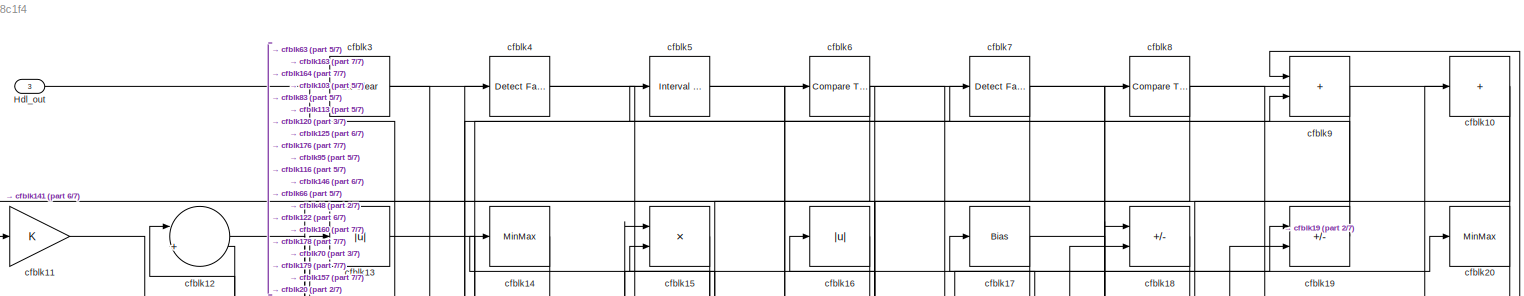
[diagram: root canvas - part 1/7, full width, top band]
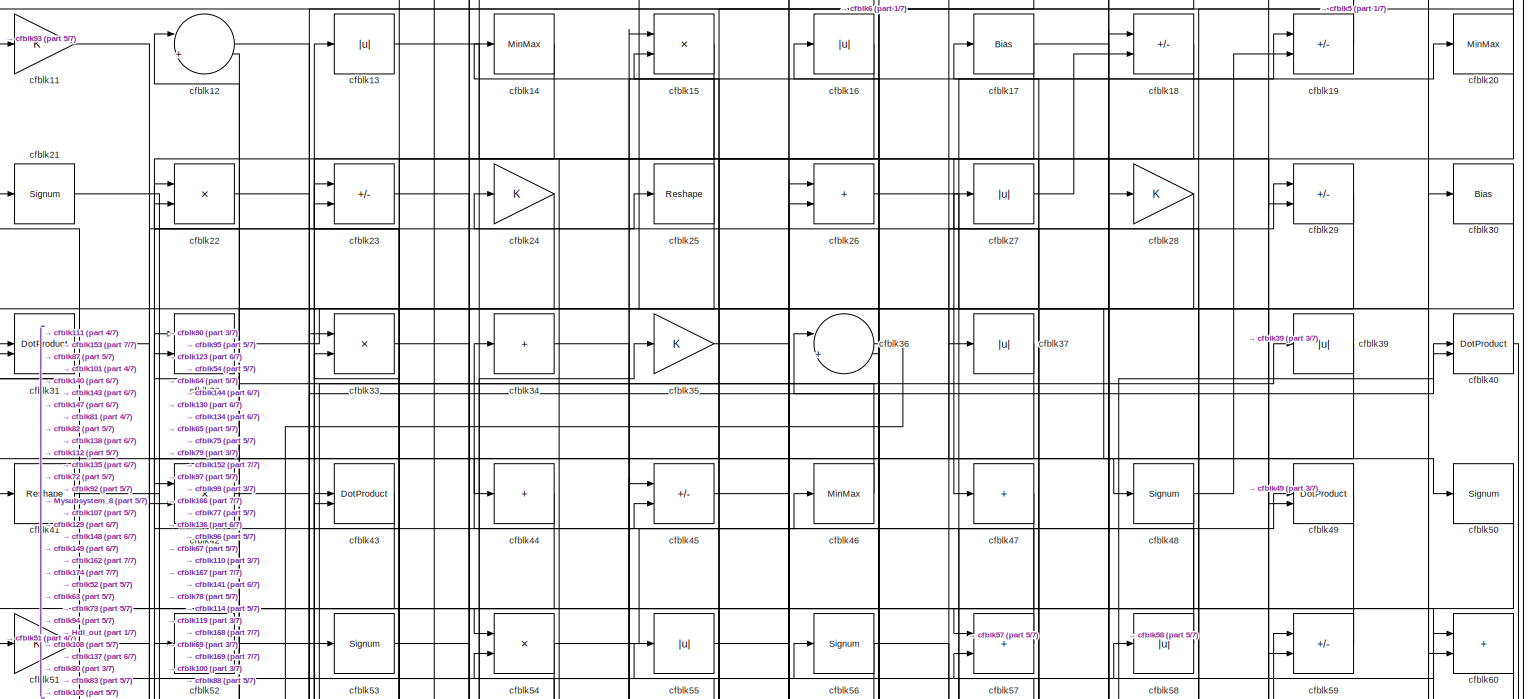
[diagram: root canvas - part 2/7, full width, top band]
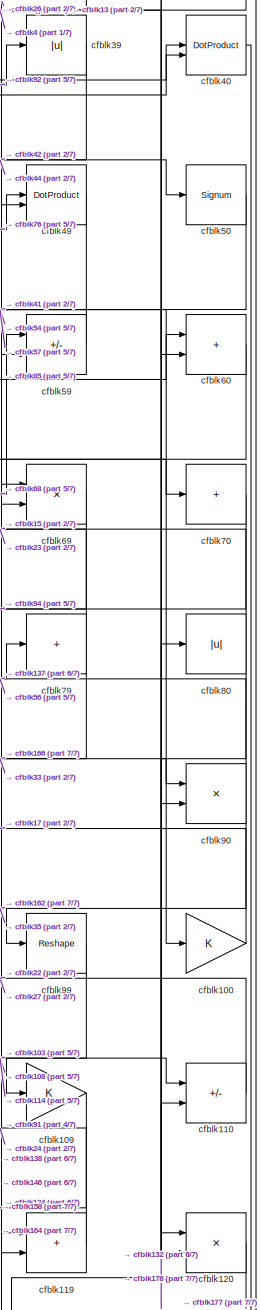
[diagram: root canvas - part 3/7, middle right region]
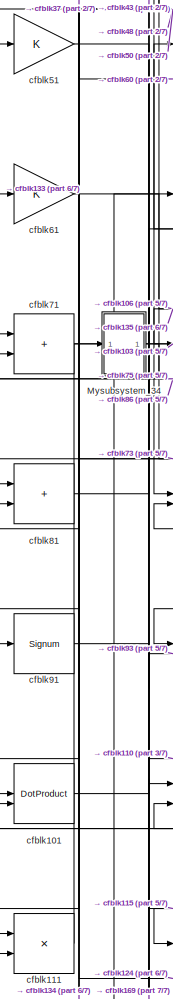
[diagram: root canvas - part 4/7, middle left region]
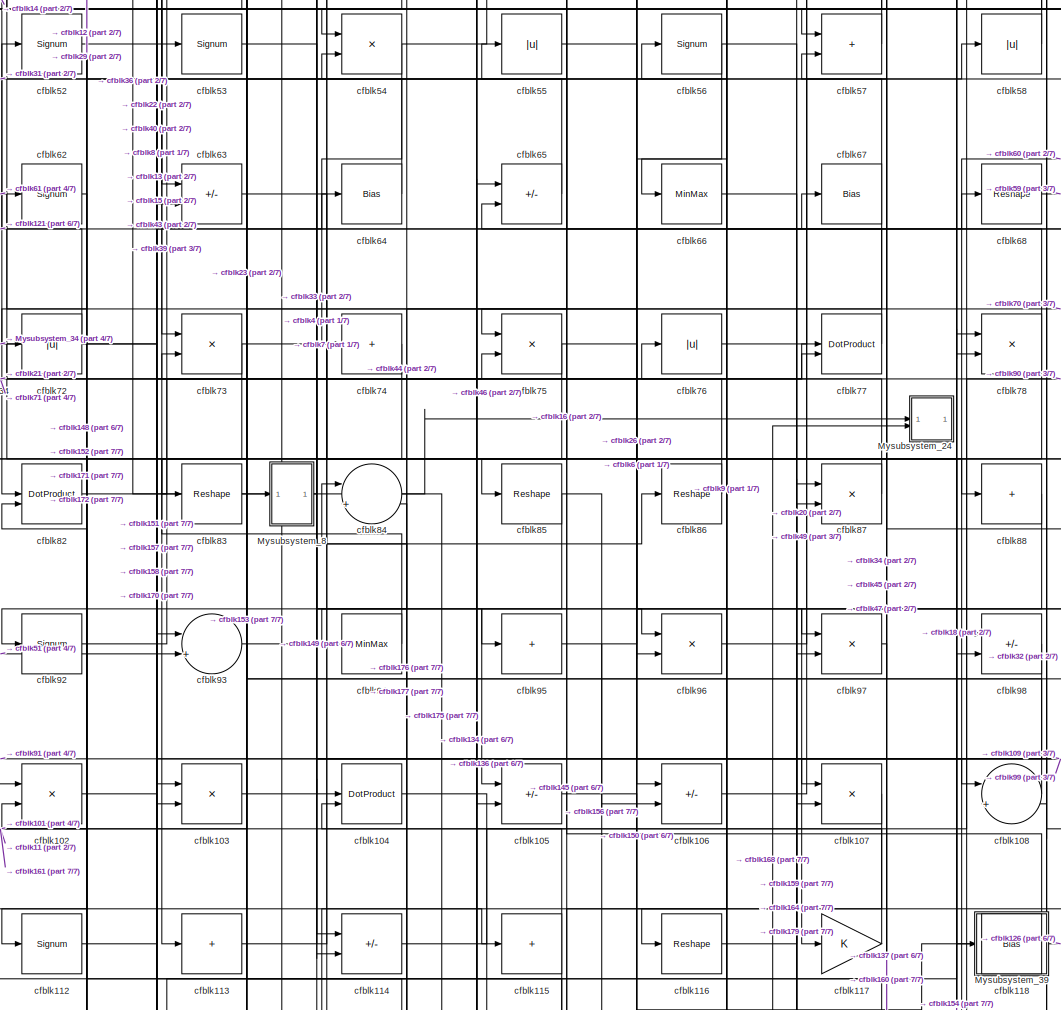
[diagram: root canvas - part 5/7, central region]
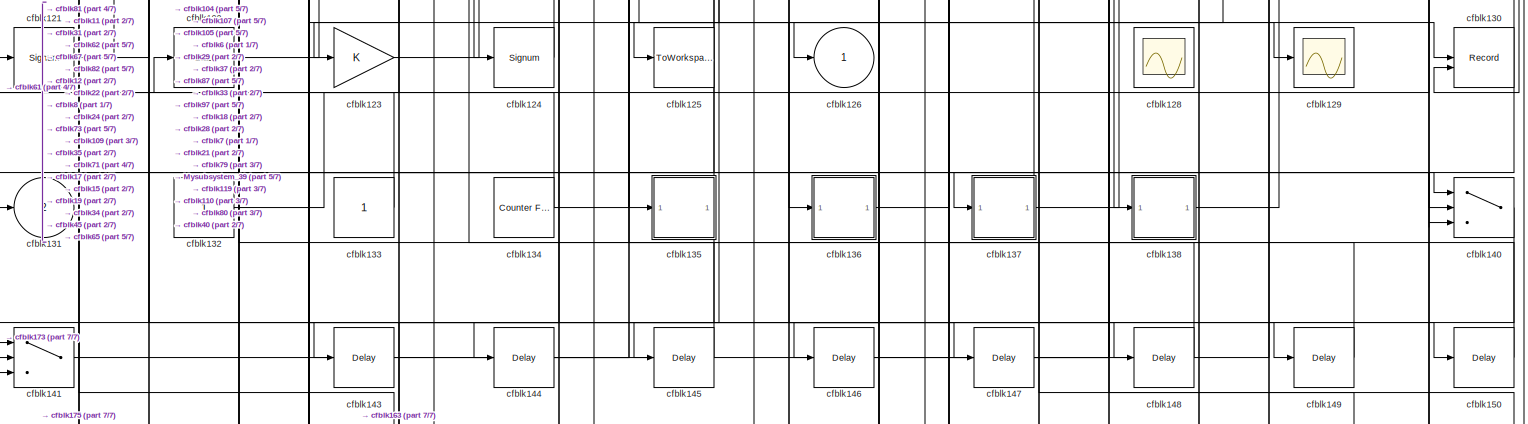
[diagram: root canvas - part 6/7, full width, bottom band]
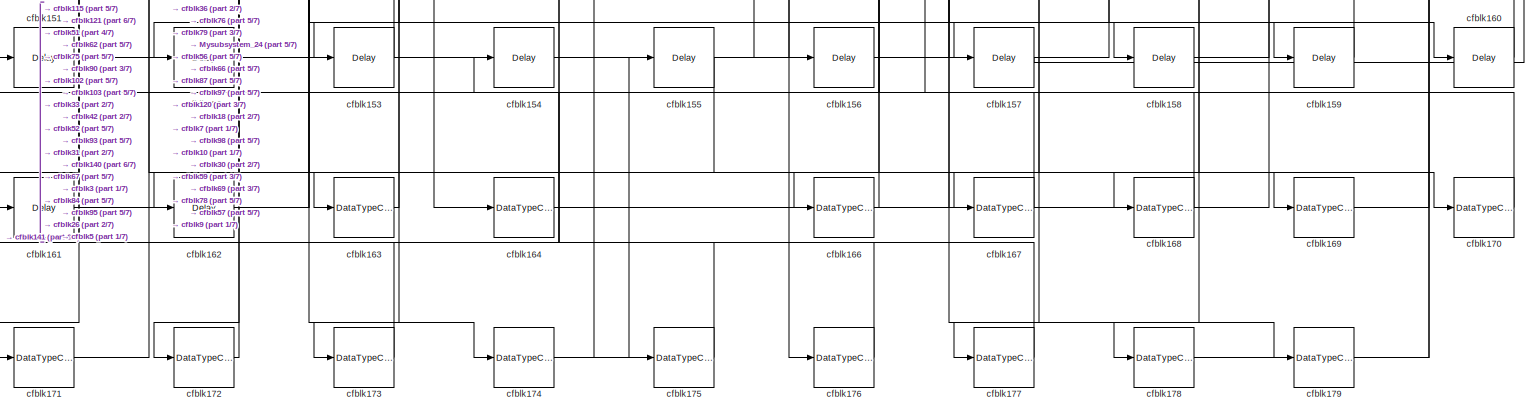
[diagram: root canvas - part 7/7, full width, bottom band]
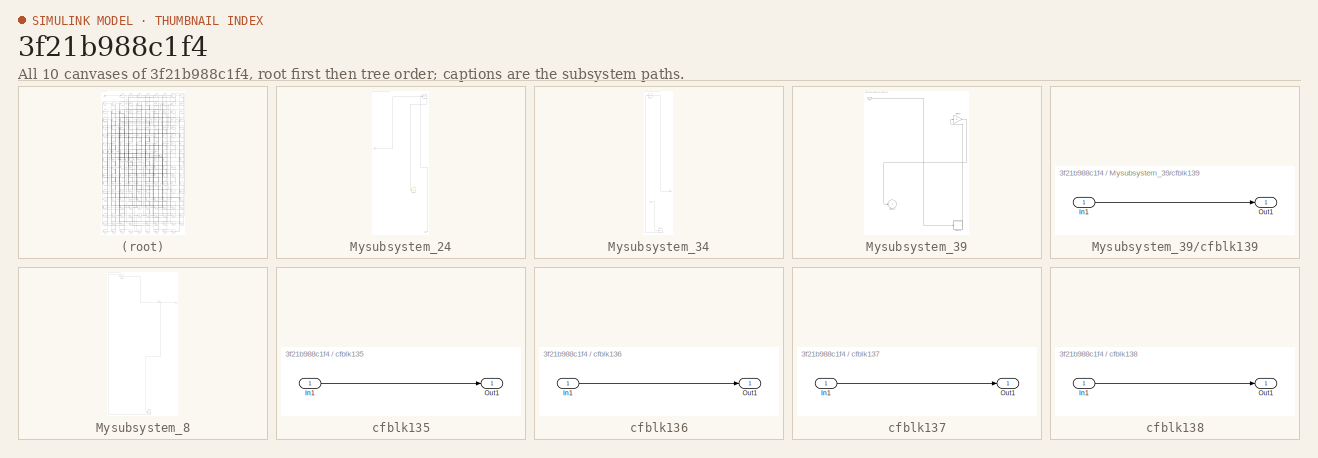
[diagram: thumbnail index - all 10 canvases of the model, root first then tree order]
MODEL slx_3f21b988c1f4
KIND model
CONFIG AbsTol = auto
CONFIG EnableMultiTasking = off
CONFIG FixedStep = auto
CONFIG MaxStep = auto
CONFIG MinStep = auto
CONFIG RelTol = 1e-3
CONFIG SampleTimeConstraint = Unconstrained
CONFIG SolverName = VariableStepAuto
CONFIG StartTime = 0.0
CONFIG StopTime = 10.0
BLOCK [Outport] Hdl_out
  OutDataTypeStr = uint8
  Port = 3
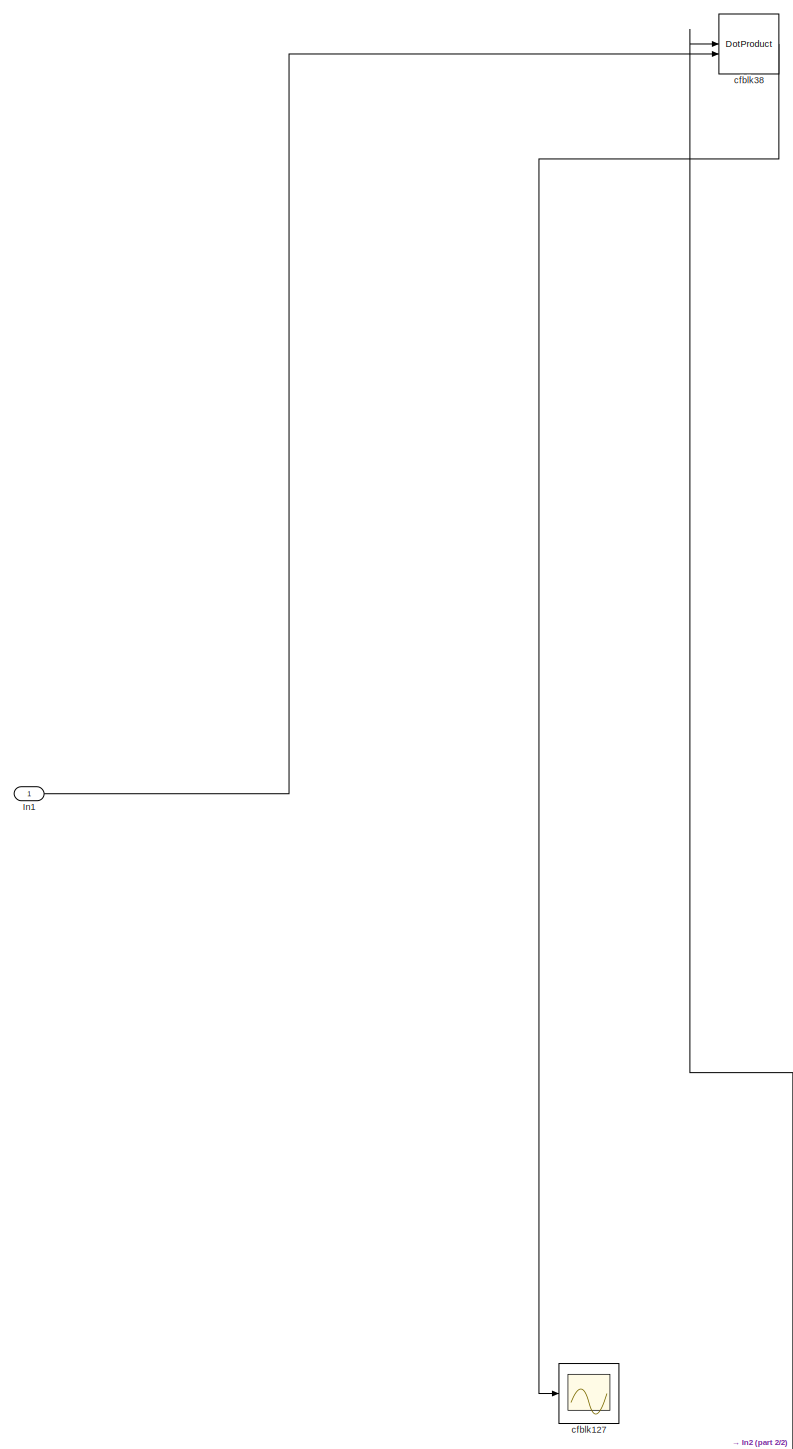
[diagram: Mysubsystem_24 - part 1/2, full width, middle band]
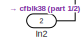
[diagram: Mysubsystem_24 - part 2/2, bottom right region]
BLOCK [SubSystem] Mysubsystem_24
  RTWFcnName = Mysubsystem_24
  RTWFcnNameOpts = User specified
  RTWFileNameOpts = Use function name
  RTWSystemCode = Reusable function
  TreatAsAtomicUnit = on
BLOCK [Inport] Mysubsystem_24/In1
BLOCK [Inport] Mysubsystem_24/In2
  Port = 2
BLOCK [Scope] Mysubsystem_24/cfblk127
  Floating = off
  NumInputPorts = 1
  ScopeSpecificationString = Simulink.scopes.TimeScopeBlockCfg('CurrentConfiguration', extmgr.ConfigurationSet(extmgr.Configuration('Core','General UI',true),extmgr.Configuration('Core','Source UI',true),extmgr.Configuration('Sources','WiredSimulink',true,'DataLoggingVariableName','ScopeData2','DataLoggingSaveFormat','Array','DataLoggingLimitDataPoints',true,'DataLoggingDecimation','1'),extmgr.Configuration('Visuals','Time Do...<+868ch>
BLOCK [DotProduct] Mysubsystem_24/cfblk38
  OutDataTypeStr = Inherit: Inherit via internal rule
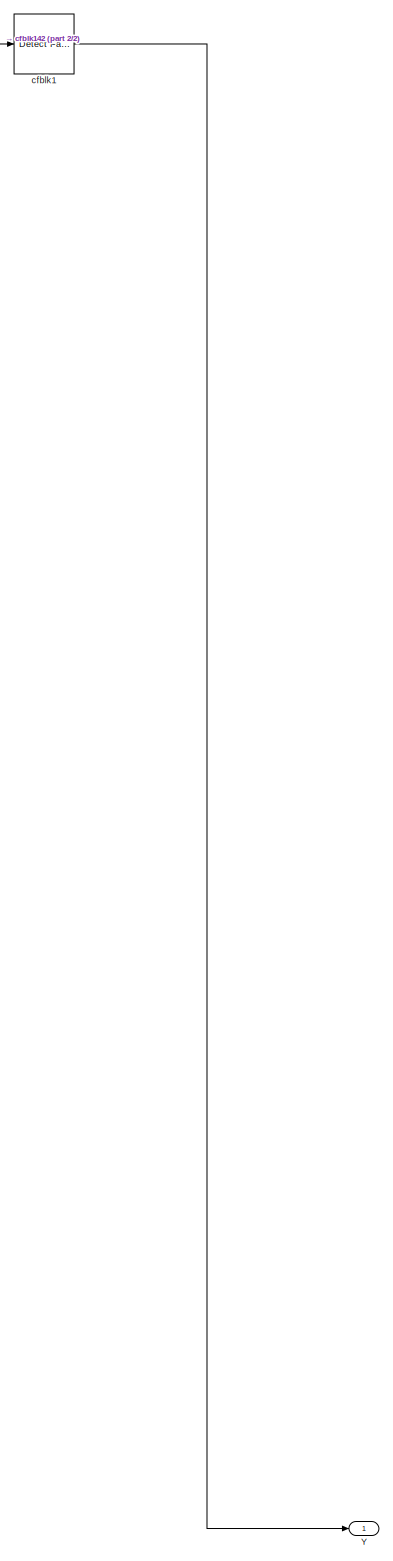
[diagram: Mysubsystem_34 - part 1/2, full width, middle band]
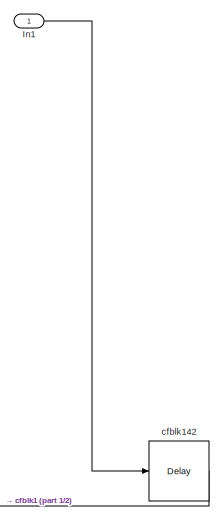
[diagram: Mysubsystem_34 - part 2/2, bottom center region]
BLOCK [SubSystem] Mysubsystem_34
  RTWFcnName = Mysubsystem_34
  RTWFcnNameOpts = User specified
  RTWFileNameOpts = Use function name
  RTWSystemCode = Reusable function
  TreatAsAtomicUnit = on
BLOCK [Inport] Mysubsystem_34/In1
BLOCK [Outport] Mysubsystem_34/Y
BLOCK [Reference] Mysubsystem_34/cfblk1  REF=hdlsllib/Logic and Bit
Operations/Detect Fall
Nonpositive
  SourceBlock = hdlsllib/Logic and Bit\nOperations/Detect Fall\nNonpositive
  SourceType = Detect Fall Nonpositive
BLOCK [Delay] Mysubsystem_34/cfblk142
  InputPortMap = u0
  SampleTime = 1
BLOCK [SubSystem] Mysubsystem_39
  RTWFcnName = Mysubsystem_39
  RTWFcnNameOpts = User specified
  RTWFileNameOpts = Use function name
  RTWSystemCode = Reusable function
  TreatAsAtomicUnit = on
BLOCK [Inport] Mysubsystem_39/In1
BLOCK [Outport] Mysubsystem_39/cfblk126
  VectorParamsAs1DForOutWhenUnconnected = off
BLOCK [SubSystem] Mysubsystem_39/cfblk139
  LibrarySourceBlock = hdlsllib/Ports &\nSubsystems/Subsystem
BLOCK [Inport] Mysubsystem_39/cfblk139/In1
BLOCK [Outport] Mysubsystem_39/cfblk139/Out1
BLOCK [Gain] Mysubsystem_39/cfblk89
BLOCK [SubSystem] Mysubsystem_8
  RTWFcnName = Mysubsystem_8
  RTWFcnNameOpts = User specified
  RTWFileNameOpts = Use function name
  RTWSystemCode = Reusable function
  TreatAsAtomicUnit = on
BLOCK [Inport] Mysubsystem_8/In1
BLOCK [DataTypeConversion] Mysubsystem_8/cfblk165
  OutDataTypeStr = uint8
  RndMeth = Floor
  SaturateOnIntegerOverflow = off
BLOCK [Reference] Mysubsystem_8/cfblk2  REF=simulink/Logic and Bit
Operations/Bit Set
  LibrarySourceBlock = hdlsllib/Logic and Bit\nOperations/Bit Set
  SourceBlock = simulink/Logic and Bit\nOperations/Bit Set
  SourceType = Bit Set
BLOCK [Outport] Mysubsystem_8/y
BLOCK [Sum] cfblk10
  IconShape = rectangular
  Inputs = +
  OutDataTypeStr = uint8
BLOCK [Gain] cfblk100
  OutDataTypeStr = uint8
BLOCK [DotProduct] cfblk101
  OutDataTypeStr = uint8
BLOCK [Product] cfblk102
  Inputs = */
  OutDataTypeStr = uint8
  RndMeth = Zero
  SaturateOnIntegerOverflow = on
BLOCK [Product] cfblk103
  Inputs = */
  OutDataTypeStr = uint8
  RndMeth = Zero
  SaturateOnIntegerOverflow = on
BLOCK [DotProduct] cfblk104
  OutDataTypeStr = uint8
BLOCK [Sum] cfblk105
  IconShape = rectangular
  Inputs = +-
  OutDataTypeStr = uint8
BLOCK [Sum] cfblk106
  IconShape = rectangular
  Inputs = +-
  OutDataTypeStr = uint8
BLOCK [Product] cfblk107
  Inputs = */
  OutDataTypeStr = uint8
  RndMeth = Zero
  SaturateOnIntegerOverflow = on
BLOCK [Sum] cfblk108
  Inputs = |++
  OutDataTypeStr = uint8
BLOCK [Gain] cfblk109
  OutDataTypeStr = uint8
BLOCK [Gain] cfblk11
  OutDataTypeStr = uint8
BLOCK [Sum] cfblk110
  IconShape = rectangular
  Inputs = +-
  OutDataTypeStr = uint8
BLOCK [Product] cfblk111
  Inputs = */
  OutDataTypeStr = uint8
  RndMeth = Zero
  SaturateOnIntegerOverflow = on
BLOCK [Signum] cfblk112
BLOCK [Sum] cfblk113
  IconShape = rectangular
  Inputs = +
  OutDataTypeStr = uint8
BLOCK [Sum] cfblk114
  IconShape = rectangular
  Inputs = +-
  OutDataTypeStr = uint8
BLOCK [Sum] cfblk115
  IconShape = rectangular
  Inputs = +
  OutDataTypeStr = uint8
BLOCK [Reshape] cfblk116
BLOCK [Gain] cfblk117
  OutDataTypeStr = uint8
BLOCK [Bias] cfblk118
  Bias = 0.0
  SaturateOnIntegerOverflow = off
BLOCK [Sum] cfblk119
  IconShape = rectangular
  OutDataTypeStr = uint8
BLOCK [Sum] cfblk12
  Inputs = |++
  OutDataTypeStr = uint8
BLOCK [Product] cfblk120
  Inputs = */
  OutDataTypeStr = uint8
  RndMeth = Zero
  SaturateOnIntegerOverflow = on
BLOCK [Signum] cfblk121
BLOCK [Bias] cfblk122
  Bias = 0.0
  SaturateOnIntegerOverflow = off
BLOCK [Gain] cfblk123
  OutDataTypeStr = uint8
BLOCK [Signum] cfblk124
BLOCK [ToWorkspace] cfblk125
  MaxDataPoints = inf
  SampleTime = -1
  SaveFormat = Timeseries
  VariableName = simout
BLOCK [Outport] cfblk126
  OutDataTypeStr = uint8
  VectorParamsAs1DForOutWhenUnconnected = off
BLOCK [Scope] cfblk128
  Floating = on
  NumInputPorts = 1
  ScopeSpecificationString = Simulink.scopes.TimeScopeBlockCfg('CurrentConfiguration', extmgr.ConfigurationSet(extmgr.Configuration('Core','General UI',true,'FigureColor',[0.156862745098039 0.156862745098039 0.156862745098039]),extmgr.Configuration('Core','Source UI',true),extmgr.Configuration('Sources','WiredSimulink',true,'DataLoggingVariableName','ScopeData1','DataLoggingSaveFormat','StructureWithTime','DataLoggingLimitDat...<+2713ch>
BLOCK [Scope] cfblk129
  Floating = off
  NumInputPorts = 1
  ScopeSpecificationString = Simulink.scopes.TimeScopeBlockCfg('CurrentConfiguration', extmgr.ConfigurationSet(extmgr.Configuration('Core','General UI',true),extmgr.Configuration('Core','Source UI',true),extmgr.Configuration('Sources','WiredSimulink',true,'DataLoggingVariableName','ScopeData2','DataLoggingSaveFormat','Array','DataLoggingLimitDataPoints',true,'DataLoggingDecimation','1'),extmgr.Configuration('Visuals','Time Do...<+868ch>
BLOCK [Abs] cfblk13
  OutDataTypeStr = uint8
  SaturateOnIntegerOverflow = off
BLOCK [Record] cfblk130
  CompatibilityTag = XY
  FileSettingsInternal = {"entries":[{"content":{"excelSettings":{"content":{},"type":"Streamout.ExcelSettings"}},"type":"Streamout.FileSettingStorage","uuid":""}],"packageUris":["http:\/\/schema.mathworks.com\/mf0\/streamout_blocks\/R2020a"],"version":"1.0"}
  Layout = [1 1]
  SignalsInternal = {"entries":[{"content":{"signals":[{"content":{"blockPath":[],"dimensions":[1],"domain":"","lineColor":"#a2142f","plots":[1],"port":1,"signalID":52225,"signalName":"cfblk34"},"type":"RecordBlkView.Signal","uuid":""},{"content":{"blockPath":[],"dimensions":[1],"domain":"","lineColor":"#139fff","plots":[1],"port":2,"signalID":52228,"signalName":"cfblk40"},"type":"RecordBlkView.Signal","uuid":""}]},"...<+142ch>
  VisualizationBindings = {"xyplotplugin":{"info":[{"series":[{"bindingParametersList":[{"parameter":"X-Axis","signalID":52225,"signalName":"cfblk34"},{"parameter":"Y-Axis","signalID":52228,"signalName":"cfblk40"}],"seriesID":51963}],"subplotID":1}]}}
  st = -1
BLOCK [Outport] cfblk131
  OutDataTypeStr = uint8
  Port = 2
  VectorParamsAs1DForOutWhenUnconnected = off
BLOCK [Constant] cfblk132
  OutDataTypeStr = uint8
  SampleTime = -1
BLOCK [Constant] cfblk133
  OutDataTypeStr = uint8
  SampleTime = -1
BLOCK [Reference] cfblk134  REF=hdlsllib/Sources/Counter
Free-Running
  SourceBlock = hdlsllib/Sources/Counter\nFree-Running
  SourceType = Counter Free-Running
BLOCK [SubSystem] cfblk135
  LibrarySourceBlock = hdlsllib/Ports &\nSubsystems/Subsystem
BLOCK [Inport] cfblk135/In1
BLOCK [Outport] cfblk135/Out1
BLOCK [SubSystem] cfblk136
  LibrarySourceBlock = hdlsllib/Ports &\nSubsystems/Subsystem
BLOCK [Inport] cfblk136/In1
BLOCK [Outport] cfblk136/Out1
BLOCK [SubSystem] cfblk137
  LibrarySourceBlock = hdlsllib/Ports &\nSubsystems/Subsystem
BLOCK [Inport] cfblk137/In1
BLOCK [Outport] cfblk137/Out1
BLOCK [SubSystem] cfblk138
  LibrarySourceBlock = hdlsllib/Ports &\nSubsystems/Subsystem
BLOCK [Inport] cfblk138/In1
BLOCK [Outport] cfblk138/Out1
BLOCK [MinMax] cfblk14
  OutDataTypeStr = uint8
BLOCK [Switch] cfblk140
  InputSameDT = off
  OutDataTypeStr = uint8
  SaturateOnIntegerOverflow = off
BLOCK [Switch] cfblk141
  InputSameDT = off
  OutDataTypeStr = uint8
  SaturateOnIntegerOverflow = off
BLOCK [Delay] cfblk143
  InputPortMap = u0
  SampleTime = 1
BLOCK [Delay] cfblk144
  InputPortMap = u0
  SampleTime = 1
BLOCK [Delay] cfblk145
  InputPortMap = u0
  SampleTime = 1
BLOCK [Delay] cfblk146
  InputPortMap = u0
  SampleTime = 1
BLOCK [Delay] cfblk147
  InputPortMap = u0
  SampleTime = 1
BLOCK [Delay] cfblk148
  InputPortMap = u0
  SampleTime = 1
BLOCK [Delay] cfblk149
  InputPortMap = u0
  SampleTime = 1
BLOCK [Product] cfblk15
  Inputs = */
  OutDataTypeStr = uint8
  RndMeth = Zero
  SaturateOnIntegerOverflow = on
BLOCK [Delay] cfblk150
  InputPortMap = u0
  SampleTime = 1
BLOCK [Delay] cfblk151
  InputPortMap = u0
  SampleTime = 1
BLOCK [Delay] cfblk152
  InputPortMap = u0
  SampleTime = 1
BLOCK [Delay] cfblk153
  InputPortMap = u0
  SampleTime = 1
BLOCK [Delay] cfblk154
  InputPortMap = u0
  SampleTime = 1
BLOCK [Delay] cfblk155
  InputPortMap = u0
  SampleTime = 1
BLOCK [Delay] cfblk156
  InputPortMap = u0
  SampleTime = 1
BLOCK [Delay] cfblk157
  InputPortMap = u0
  SampleTime = 1
BLOCK [Delay] cfblk158
  InputPortMap = u0
  SampleTime = 1
BLOCK [Delay] cfblk159
  InputPortMap = u0
  SampleTime = 1
BLOCK [Abs] cfblk16
  OutDataTypeStr = uint8
  SaturateOnIntegerOverflow = off
BLOCK [Delay] cfblk160
  InputPortMap = u0
  SampleTime = 1
BLOCK [Delay] cfblk161
  InputPortMap = u0
  SampleTime = 1
BLOCK [Delay] cfblk162
  InputPortMap = u0
  SampleTime = 1
BLOCK [DataTypeConversion] cfblk163
  OutDataTypeStr = uint8
  RndMeth = Floor
  SaturateOnIntegerOverflow = off
BLOCK [DataTypeConversion] cfblk164
  OutDataTypeStr = uint8
  RndMeth = Floor
  SaturateOnIntegerOverflow = off
BLOCK [DataTypeConversion] cfblk166
  OutDataTypeStr = uint8
  RndMeth = Floor
  SaturateOnIntegerOverflow = off
BLOCK [DataTypeConversion] cfblk167
  OutDataTypeStr = uint8
  RndMeth = Floor
  SaturateOnIntegerOverflow = off
BLOCK [DataTypeConversion] cfblk168
  OutDataTypeStr = uint8
  RndMeth = Floor
  SaturateOnIntegerOverflow = off
BLOCK [DataTypeConversion] cfblk169
  OutDataTypeStr = uint8
  RndMeth = Floor
  SaturateOnIntegerOverflow = off
BLOCK [Bias] cfblk17
  Bias = 0.0
  SaturateOnIntegerOverflow = off
BLOCK [DataTypeConversion] cfblk170
  OutDataTypeStr = uint8
  RndMeth = Floor
  SaturateOnIntegerOverflow = off
BLOCK [DataTypeConversion] cfblk171
  OutDataTypeStr = uint8
  RndMeth = Floor
  SaturateOnIntegerOverflow = off
BLOCK [DataTypeConversion] cfblk172
  OutDataTypeStr = uint8
  RndMeth = Floor
  SaturateOnIntegerOverflow = off
BLOCK [DataTypeConversion] cfblk173
  OutDataTypeStr = uint8
  RndMeth = Floor
  SaturateOnIntegerOverflow = off
BLOCK [DataTypeConversion] cfblk174
  OutDataTypeStr = uint8
  RndMeth = Floor
  SaturateOnIntegerOverflow = off
BLOCK [DataTypeConversion] cfblk175
  OutDataTypeStr = uint8
  RndMeth = Floor
  SaturateOnIntegerOverflow = off
BLOCK [DataTypeConversion] cfblk176
  OutDataTypeStr = uint8
  RndMeth = Floor
  SaturateOnIntegerOverflow = off
BLOCK [DataTypeConversion] cfblk177
  OutDataTypeStr = uint8
  RndMeth = Floor
  SaturateOnIntegerOverflow = off
BLOCK [DataTypeConversion] cfblk178
  OutDataTypeStr = uint8
  RndMeth = Floor
  SaturateOnIntegerOverflow = off
BLOCK [DataTypeConversion] cfblk179
  OutDataTypeStr = uint8
  RndMeth = Floor
  SaturateOnIntegerOverflow = off
BLOCK [Sum] cfblk18
  IconShape = rectangular
  Inputs = +-
  OutDataTypeStr = uint8
BLOCK [Sum] cfblk19
  IconShape = rectangular
  Inputs = +-
  OutDataTypeStr = uint8
BLOCK [MinMax] cfblk20
  OutDataTypeStr = uint8
BLOCK [Signum] cfblk21
BLOCK [Product] cfblk22
  Inputs = */
  OutDataTypeStr = uint8
  RndMeth = Zero
  SaturateOnIntegerOverflow = on
BLOCK [Sum] cfblk23
  IconShape = rectangular
  Inputs = +-
  OutDataTypeStr = uint8
BLOCK [Gain] cfblk24
  OutDataTypeStr = uint8
BLOCK [Reshape] cfblk25
BLOCK [Sum] cfblk26
  IconShape = rectangular
  OutDataTypeStr = uint8
BLOCK [Abs] cfblk27
  OutDataTypeStr = uint8
  SaturateOnIntegerOverflow = off
BLOCK [Gain] cfblk28
  OutDataTypeStr = uint8
BLOCK [Sum] cfblk29
  IconShape = rectangular
  Inputs = +-
  OutDataTypeStr = uint8
BLOCK [Reference] cfblk3  REF=simulink/Logic and Bit
Operations/Bit Clear
  LibrarySourceBlock = hdlsllib/Logic and Bit\nOperations/Bit Clear
  SourceBlock = simulink/Logic and Bit\nOperations/Bit Clear
  SourceType = Bit Clear
BLOCK [Bias] cfblk30
  Bias = 0.0
  SaturateOnIntegerOverflow = off
BLOCK [DotProduct] cfblk31
  OutDataTypeStr = uint8
BLOCK [Sum] cfblk32
  IconShape = rectangular
  OutDataTypeStr = uint8
BLOCK [Product] cfblk33
  Inputs = */
  OutDataTypeStr = uint8
  RndMeth = Zero
  SaturateOnIntegerOverflow = on
BLOCK [Sum] cfblk34
  IconShape = rectangular
  Inputs = +
  OutDataTypeStr = uint8
BLOCK [Gain] cfblk35
  OutDataTypeStr = uint8
BLOCK [Sum] cfblk36
  Inputs = |++
  OutDataTypeStr = uint8
BLOCK [Abs] cfblk37
  OutDataTypeStr = uint8
  SaturateOnIntegerOverflow = off
BLOCK [Abs] cfblk39
  OutDataTypeStr = uint8
  SaturateOnIntegerOverflow = off
BLOCK [Reference] cfblk4  REF=hdlsllib/Logic and Bit
Operations/Detect Fall
Negative
  SourceBlock = hdlsllib/Logic and Bit\nOperations/Detect Fall\nNegative
  SourceType = Detect Fall Negative
BLOCK [DotProduct] cfblk40
  OutDataTypeStr = uint8
BLOCK [Reshape] cfblk41
BLOCK [Product] cfblk42
  Inputs = */
  OutDataTypeStr = uint8
  RndMeth = Zero
  SaturateOnIntegerOverflow = on
BLOCK [DotProduct] cfblk43
  OutDataTypeStr = uint8
BLOCK [Sum] cfblk44
  IconShape = rectangular
  Inputs = +
  OutDataTypeStr = uint8
BLOCK [Sum] cfblk45
  IconShape = rectangular
  Inputs = +-
  OutDataTypeStr = uint8
BLOCK [MinMax] cfblk46
  OutDataTypeStr = uint8
BLOCK [Sum] cfblk47
  IconShape = rectangular
  Inputs = +
  OutDataTypeStr = uint8
BLOCK [Signum] cfblk48
BLOCK [DotProduct] cfblk49
  OutDataTypeStr = uint8
BLOCK [Reference] cfblk5  REF=hdlsllib/Logic and Bit
Operations/Interval Test
  SourceBlock = hdlsllib/Logic and Bit\nOperations/Interval Test
  SourceType = Interval Test
BLOCK [Signum] cfblk50
BLOCK [Gain] cfblk51
  OutDataTypeStr = uint8
BLOCK [Signum] cfblk52
BLOCK [Signum] cfblk53
BLOCK [Product] cfblk54
  Inputs = */
  OutDataTypeStr = uint8
  RndMeth = Zero
  SaturateOnIntegerOverflow = on
BLOCK [Abs] cfblk55
  OutDataTypeStr = uint8
  SaturateOnIntegerOverflow = off
BLOCK [Signum] cfblk56
BLOCK [Sum] cfblk57
  IconShape = rectangular
  OutDataTypeStr = uint8
BLOCK [Abs] cfblk58
  OutDataTypeStr = uint8
  SaturateOnIntegerOverflow = off
BLOCK [Sum] cfblk59
  IconShape = rectangular
  Inputs = +-
  OutDataTypeStr = uint8
BLOCK [Reference] cfblk6  REF=hdlsllib/Logic and Bit
Operations/Compare
To Constant
  SourceBlock = hdlsllib/Logic and Bit\nOperations/Compare\nTo Constant
  SourceType = Compare To Constant
BLOCK [Sum] cfblk60
  IconShape = rectangular
  OutDataTypeStr = uint8
BLOCK [Gain] cfblk61
  OutDataTypeStr = uint8
BLOCK [Signum] cfblk62
BLOCK [Sum] cfblk63
  IconShape = rectangular
  Inputs = +-
  OutDataTypeStr = uint8
BLOCK [Bias] cfblk64
  Bias = 0.0
  SaturateOnIntegerOverflow = off
BLOCK [Sum] cfblk65
  IconShape = rectangular
  Inputs = +-
  OutDataTypeStr = uint8
BLOCK [MinMax] cfblk66
  OutDataTypeStr = uint8
BLOCK [Bias] cfblk67
  Bias = 0.0
  SaturateOnIntegerOverflow = off
BLOCK [Reshape] cfblk68
BLOCK [Product] cfblk69
  Inputs = */
  OutDataTypeStr = uint8
  RndMeth = Zero
  SaturateOnIntegerOverflow = on
BLOCK [Reference] cfblk7  REF=hdlsllib/Logic and Bit
Operations/Detect Fall
Negative
  SourceBlock = hdlsllib/Logic and Bit\nOperations/Detect Fall\nNegative
  SourceType = Detect Fall Negative
BLOCK [Sum] cfblk70
  IconShape = rectangular
  Inputs = +
  OutDataTypeStr = uint8
BLOCK [Sum] cfblk71
  IconShape = rectangular
  OutDataTypeStr = uint8
BLOCK [Abs] cfblk72
  OutDataTypeStr = uint8
  SaturateOnIntegerOverflow = off
BLOCK [Product] cfblk73
  Inputs = */
  OutDataTypeStr = uint8
  RndMeth = Zero
  SaturateOnIntegerOverflow = on
BLOCK [Sum] cfblk74
  IconShape = rectangular
  Inputs = +
  OutDataTypeStr = uint8
BLOCK [Product] cfblk75
  Inputs = */
  OutDataTypeStr = uint8
  RndMeth = Zero
  SaturateOnIntegerOverflow = on
BLOCK [Abs] cfblk76
  OutDataTypeStr = uint8
  SaturateOnIntegerOverflow = off
BLOCK [DotProduct] cfblk77
  OutDataTypeStr = uint8
BLOCK [Product] cfblk78
  Inputs = */
  OutDataTypeStr = uint8
  RndMeth = Zero
  SaturateOnIntegerOverflow = on
BLOCK [Sum] cfblk79
  IconShape = rectangular
  Inputs = +
  OutDataTypeStr = uint8
BLOCK [Reference] cfblk8  REF=hdlsllib/Logic and Bit
Operations/Compare
To Constant
  SourceBlock = hdlsllib/Logic and Bit\nOperations/Compare\nTo Constant
  SourceType = Compare To Constant
BLOCK [Abs] cfblk80
  OutDataTypeStr = uint8
  SaturateOnIntegerOverflow = off
BLOCK [Sum] cfblk81
  IconShape = rectangular
  OutDataTypeStr = uint8
BLOCK [DotProduct] cfblk82
  OutDataTypeStr = uint8
BLOCK [Reshape] cfblk83
BLOCK [Sum] cfblk84
  Inputs = |++
  OutDataTypeStr = uint8
BLOCK [Reshape] cfblk85
BLOCK [Reshape] cfblk86
BLOCK [Product] cfblk87
  Inputs = */
  OutDataTypeStr = uint8
  RndMeth = Zero
  SaturateOnIntegerOverflow = on
BLOCK [Sum] cfblk88
  IconShape = rectangular
  Inputs = +
  OutDataTypeStr = uint8
BLOCK [Sum] cfblk9
  IconShape = rectangular
  OutDataTypeStr = uint8
BLOCK [Product] cfblk90
  Inputs = */
  OutDataTypeStr = uint8
  RndMeth = Zero
  SaturateOnIntegerOverflow = on
BLOCK [Signum] cfblk91
BLOCK [Signum] cfblk92
BLOCK [Sum] cfblk93
  Inputs = |++
  OutDataTypeStr = uint8
BLOCK [MinMax] cfblk94
  OutDataTypeStr = uint8
BLOCK [Sum] cfblk95
  IconShape = rectangular
  Inputs = +
  OutDataTypeStr = uint8
BLOCK [Product] cfblk96
  Inputs = */
  OutDataTypeStr = uint8
  RndMeth = Zero
  SaturateOnIntegerOverflow = on
BLOCK [Product] cfblk97
  Inputs = */
  OutDataTypeStr = uint8
  RndMeth = Zero
  SaturateOnIntegerOverflow = on
BLOCK [Sum] cfblk98
  IconShape = rectangular
  Inputs = +-
  OutDataTypeStr = uint8
BLOCK [Reshape] cfblk99
LINE Mysubsystem_24/In1:1 -> Mysubsystem_24/cfblk38:2
LINE Mysubsystem_24/In2:1 -> Mysubsystem_24/cfblk38:1
LINE Mysubsystem_24/cfblk38:1 -> Mysubsystem_24/cfblk127:1
LINE Mysubsystem_34/In1:1 -> Mysubsystem_34/cfblk142:1
LINE Mysubsystem_34/cfblk142:1 -> Mysubsystem_34/cfblk1:1
LINE Mysubsystem_34/cfblk1:1 -> Mysubsystem_34/Y:1
LINE Mysubsystem_34:1 -> cfblk103:1
LINE Mysubsystem_39/In1:1 -> Mysubsystem_39/cfblk139:1
LINE Mysubsystem_39/cfblk139/In1:1 -> Mysubsystem_39/cfblk139/Out1:1
LINE Mysubsystem_39/cfblk139:1 -> Mysubsystem_39/cfblk89:1
LINE Mysubsystem_39/cfblk89:1 -> Mysubsystem_39/cfblk126:1
LINE Mysubsystem_39:1 -> cfblk126:1
LINE Mysubsystem_8/In1:1 -> Mysubsystem_8/cfblk165:1
LINE Mysubsystem_8/cfblk165:1 -> Mysubsystem_8/cfblk2:1
LINE Mysubsystem_8/cfblk2:1 -> Mysubsystem_8/y:1
LINE Mysubsystem_8:1 -> Mysubsystem_24:1
LINE cfblk100:1 -> cfblk17:1
LINE cfblk101:1 -> cfblk60:1
LINE cfblk102:1 -> cfblk170:1
NET cfblk103:1 -> cfblk109:1, cfblk9:2
LINE cfblk104:1 -> cfblk136:1
LINE cfblk105:1 -> cfblk150:1
LINE cfblk106:1 -> cfblk58:1
LINE cfblk107:1 -> cfblk145:1
LINE cfblk108:1 -> cfblk23:1
LINE cfblk109:1 -> cfblk124:1
LINE cfblk10:1 -> cfblk178:1
NET cfblk110:1 -> cfblk22:2, cfblk27:1
LINE cfblk111:1 -> Mysubsystem_34:1
NET cfblk112:1 -> cfblk12:1, cfblk53:1
NET cfblk113:1 -> cfblk77:1, cfblk7:1
LINE cfblk114:1 -> cfblk40:1
NET cfblk115:1 -> cfblk101:2, cfblk161:1
LINE cfblk116:1 -> cfblk68:1
LINE cfblk117:1 -> cfblk104:2
LINE cfblk118:1 -> cfblk65:2
LINE cfblk119:1 -> cfblk24:1
LINE cfblk11:1 -> cfblk147:1
LINE cfblk120:1 -> cfblk177:1
NET cfblk121:1 -> cfblk62:1, cfblk67:1
NET cfblk122:1 -> cfblk140:3, cfblk8:1
LINE cfblk123:1 -> cfblk35:1
LINE cfblk124:1 -> cfblk71:2
NET cfblk12:1 -> cfblk129:1, cfblk149:1
NET cfblk132:1 -> cfblk140:1, cfblk80:1
LINE cfblk133:1 -> cfblk61:1
NET cfblk134:1 -> cfblk122:1, cfblk131:1, cfblk19:1, cfblk73:2, cfblk81:2
LINE cfblk135/In1:1 -> cfblk135/Out1:1
NET cfblk135:1 -> cfblk12:2, cfblk141:2
LINE cfblk136/In1:1 -> cfblk136/Out1:1
NET cfblk136:1 -> cfblk29:1, cfblk37:1
LINE cfblk137/In1:1 -> cfblk137/Out1:1
NET cfblk137:1 -> cfblk33:2, cfblk79:1
LINE cfblk138/In1:1 -> cfblk138/Out1:1
LINE cfblk138:1 -> cfblk110:2
LINE cfblk13:1 -> cfblk49:2
LINE cfblk140:1 -> cfblk163:1
LINE cfblk141:1 -> cfblk28:1
LINE cfblk143:1 -> cfblk15:1
LINE cfblk144:1 -> cfblk45:1
LINE cfblk145:1 -> cfblk65:1
LINE cfblk146:1 -> cfblk119:1
LINE cfblk147:1 -> cfblk18:1
LINE cfblk148:1 -> cfblk82:2
LINE cfblk149:1 -> cfblk104:1
LINE cfblk14:1 -> cfblk82:1
LINE cfblk150:1 -> cfblk87:1
LINE cfblk151:1 -> cfblk93:1
LINE cfblk152:1 -> cfblk26:2
LINE cfblk153:1 -> cfblk31:2
LINE cfblk154:1 -> cfblk98:2
LINE cfblk155:1 -> cfblk173:1
LINE cfblk156:1 -> cfblk97:2
LINE cfblk157:1 -> cfblk9:1
LINE cfblk158:1 -> cfblk59:2
LINE cfblk159:1 -> cfblk78:1
LINE cfblk15:1 -> cfblk73:1
LINE cfblk160:1 -> cfblk57:2
LINE cfblk161:1 -> cfblk103:2
LINE cfblk162:1 -> cfblk33:1
LINE cfblk163:1 -> cfblk3:1
NET cfblk164:1 -> cfblk69:2, cfblk87:2
LINE cfblk166:1 -> cfblk36:1
LINE cfblk167:1 -> cfblk36:2
LINE cfblk168:1 -> Mysubsystem_24:2
LINE cfblk169:1 -> cfblk30:1
LINE cfblk16:1 -> cfblk75:1
NET cfblk170:1 -> cfblk151:1, cfblk76:1
LINE cfblk171:1 -> cfblk102:1
LINE cfblk172:1 -> cfblk102:2
LINE cfblk173:1 -> cfblk141:1
LINE cfblk174:1 -> cfblk155:1
NET cfblk175:1 -> cfblk121:1, cfblk154:1
LINE cfblk176:1 -> cfblk84:1
LINE cfblk177:1 -> cfblk84:2
LINE cfblk178:1 -> cfblk120:2
LINE cfblk179:1 -> cfblk10:1
NET cfblk17:1 -> cfblk144:1, cfblk60:2
NET cfblk18:1 -> cfblk167:1, cfblk47:1, cfblk78:2
LINE cfblk19:1 -> cfblk5:1
NET cfblk20:1 -> Hdl_out:1, cfblk29:2, cfblk83:1
LINE cfblk21:1 -> cfblk138:1
NET cfblk22:1 -> cfblk107:2, cfblk148:1
NET cfblk23:1 -> cfblk105:2, cfblk95:1
LINE cfblk24:1 -> cfblk123:1
NET cfblk25:1 -> cfblk111:2, cfblk14:1
LINE cfblk26:1 -> cfblk69:1
LINE cfblk27:1 -> cfblk18:2
LINE cfblk28:1 -> cfblk42:1
LINE cfblk29:1 -> cfblk92:1
LINE cfblk30:1 -> cfblk168:1
NET cfblk31:1 -> cfblk140:2, cfblk143:1
LINE cfblk32:1 -> cfblk50:1
NET cfblk33:1 -> cfblk90:1, cfblk96:1
LINE cfblk34:1 -> cfblk130:1
LINE cfblk35:1 -> cfblk99:1
LINE cfblk36:1 -> Mysubsystem_8:1
NET cfblk37:1 -> cfblk41:1, cfblk81:1
NET cfblk39:1 -> cfblk42:2, cfblk44:1
LINE cfblk3:1 -> cfblk164:1
LINE cfblk40:1 -> cfblk130:2
LINE cfblk41:1 -> cfblk100:1
LINE cfblk42:1 -> cfblk174:1
LINE cfblk43:1 -> cfblk111:1
LINE cfblk44:1 -> cfblk72:1
LINE cfblk45:1 -> cfblk97:1
LINE cfblk46:1 -> cfblk22:1
LINE cfblk47:1 -> cfblk63:1
NET cfblk48:1 -> cfblk19:2, cfblk51:1
NET cfblk49:1 -> cfblk54:1, cfblk85:1
LINE cfblk4:1 -> cfblk120:1
LINE cfblk50:1 -> cfblk101:1
NET cfblk51:1 -> cfblk169:1, cfblk93:2
NET cfblk52:1 -> cfblk157:1, cfblk158:1, cfblk40:2
LINE cfblk53:1 -> cfblk114:1
NET cfblk54:1 -> cfblk46:1, cfblk74:1
LINE cfblk55:1 -> cfblk108:1
NET cfblk56:1 -> cfblk179:1, cfblk54:2, cfblk96:2
NET cfblk57:1 -> cfblk34:1, cfblk45:2
LINE cfblk58:1 -> cfblk32:1
LINE cfblk59:1 -> cfblk57:1
LINE cfblk5:1 -> cfblk176:1
LINE cfblk60:1 -> cfblk88:1
NET cfblk61:1 -> cfblk106:1, cfblk135:1
LINE cfblk62:1 -> cfblk172:1
LINE cfblk63:1 -> cfblk98:1
LINE cfblk64:1 -> cfblk32:2
NET cfblk65:1 -> cfblk31:1, cfblk43:1
LINE cfblk66:1 -> cfblk159:1
NET cfblk67:1 -> cfblk153:1, cfblk43:2
LINE cfblk68:1 -> cfblk59:1
LINE cfblk69:1 -> cfblk119:2
NET cfblk6:1 -> cfblk141:3, cfblk146:1, cfblk48:1
LINE cfblk70:1 -> cfblk94:1
LINE cfblk71:1 -> cfblk75:2
NET cfblk72:1 -> cfblk52:1, cfblk64:1
NET cfblk73:1 -> cfblk118:1, cfblk91:1
LINE cfblk74:1 -> cfblk112:1
NET cfblk75:1 -> Mysubsystem_39:1, cfblk152:1, cfblk171:1
LINE cfblk76:1 -> cfblk49:1
LINE cfblk77:1 -> cfblk16:1
NET cfblk78:1 -> cfblk113:1, cfblk55:1
NET cfblk79:1 -> cfblk15:2, cfblk166:1
NET cfblk7:1 -> cfblk125:1, cfblk160:1, cfblk66:1
NET cfblk80:1 -> cfblk23:2, cfblk90:2
LINE cfblk81:1 -> cfblk25:1
LINE cfblk82:1 -> cfblk26:1
LINE cfblk83:1 -> cfblk4:1
LINE cfblk84:1 -> cfblk175:1
NET cfblk85:1 -> cfblk105:1, cfblk106:2
LINE cfblk86:1 -> cfblk71:1
LINE cfblk87:1 -> cfblk21:1
LINE cfblk88:1 -> cfblk107:1
NET cfblk8:1 -> cfblk63:2, cfblk70:1
NET cfblk90:1 -> cfblk162:1, cfblk56:1
NET cfblk91:1 -> cfblk110:1, cfblk115:1
NET cfblk92:1 -> cfblk39:1, cfblk77:2
NET cfblk93:1 -> cfblk11:1, cfblk86:1
LINE cfblk94:1 -> cfblk13:1
NET cfblk95:1 -> cfblk156:1, cfblk6:1
LINE cfblk96:1 -> cfblk20:1
LINE cfblk97:1 -> cfblk137:1
LINE cfblk98:1 -> cfblk117:1
NET cfblk99:1 -> cfblk108:2, cfblk114:2
LINE cfblk9:1 -> cfblk116:1
note: NET lines group one-source signal fan-out (src -> all destinations, sorted); 1:1 wires keep LINE
